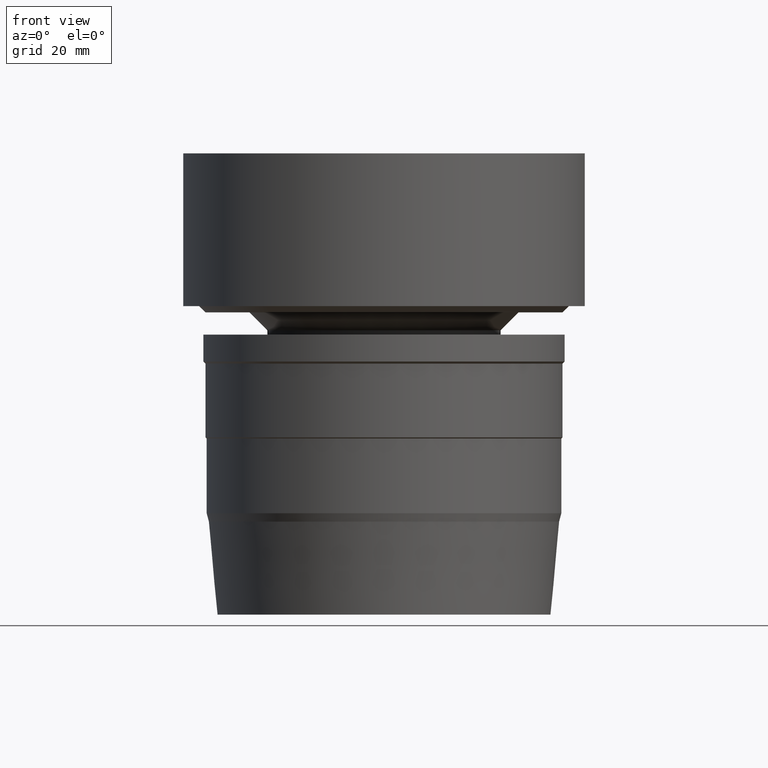
[diagram: clean part render]
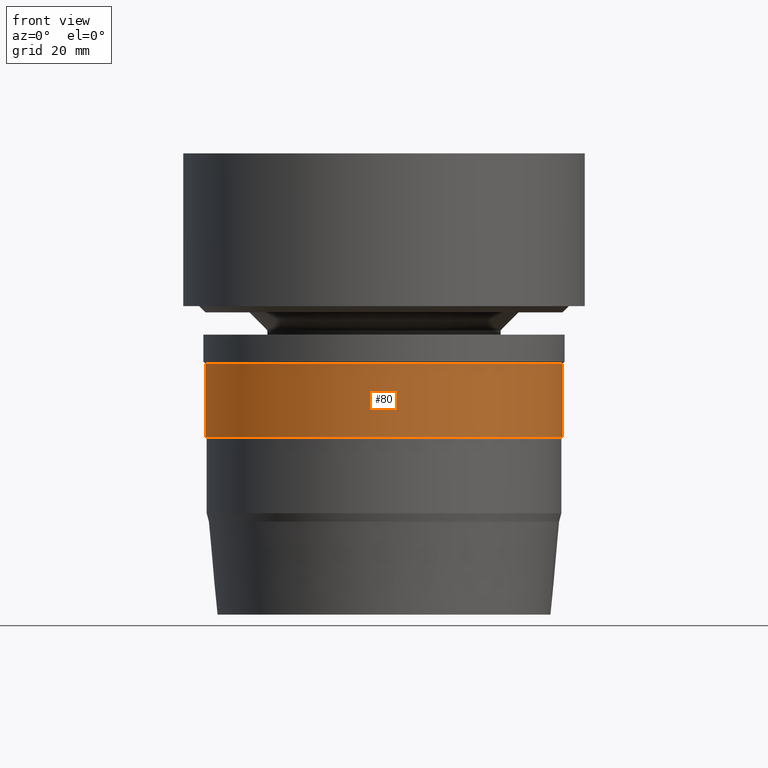
[diagram: same view with one face highlighted and labeled with its STEP entity id]
A machine part, front view. The second image highlights one B-rep face of the part: STEP entity #80.
In plain terms, the highlighted cylindrical surface (bore or boss wall) has radius 40 mm, axis along (0, 0, -1).
Its self-contained STEP definition (entity closure, byte-faithful):
#80=ADVANCED_FACE('',(#106,#107),#108,.T.);
#106=FACE_BOUND('',#152,.T.);
#107=FACE_BOUND('',#153,.T.);
#108=CYLINDRICAL_SURFACE('',#154,40.0);
#152=EDGE_LOOP('',(#208));
#153=EDGE_LOOP('',(#209));
#154=AXIS2_PLACEMENT_3D('',#210,#211,#212);
#208=ORIENTED_EDGE('',*,*,#267,.F.);
#209=ORIENTED_EDGE('',*,*,#266,.T.);
#210=CARTESIAN_POINT('',(3.3892100166403E-015,6.7784200332806E-015,-55.35));
#211=DIRECTION('',(6.12323399573677E-017,1.22464679914735E-016,-1.0));
#212=DIRECTION('',(-1.23259516440783E-032,1.0,1.22464679914735E-016));
#266=EDGE_CURVE('',#285,#285,#286,.T.);
#267=EDGE_CURVE('',#287,#287,#288,.T.);
#285=VERTEX_POINT('',#315);
#286=CIRCLE('',#316,40.0);
#287=VERTEX_POINT('',#317);
#288=CIRCLE('',#318,40.0);
#315=CARTESIAN_POINT('',(3.89437682128858E-015,40.0,-63.6));
#316=AXIS2_PLACEMENT_3D('',#349,#350,#351);
#317=CARTESIAN_POINT('',(2.88404321199202E-015,40.0,-47.1));
#318=AXIS2_PLACEMENT_3D('',#352,#353,#354);
#349=CARTESIAN_POINT('',(3.89437682128858E-015,7.78875364257717E-015,-63.6));
#350=DIRECTION('',(-6.12323399573677E-017,-1.22464679914735E-016,1.0));
#351=DIRECTION('',(-1.23259516440783E-032,1.0,1.22464679914735E-016));
#352=CARTESIAN_POINT('',(2.88404321199202E-015,5.76808642398403E-015,-47.1));
#353=DIRECTION('',(-6.12323399573677E-017,-1.22464679914735E-016,1.0));
#354=DIRECTION('',(-1.23259516440783E-032,1.0,1.22464679914735E-016));